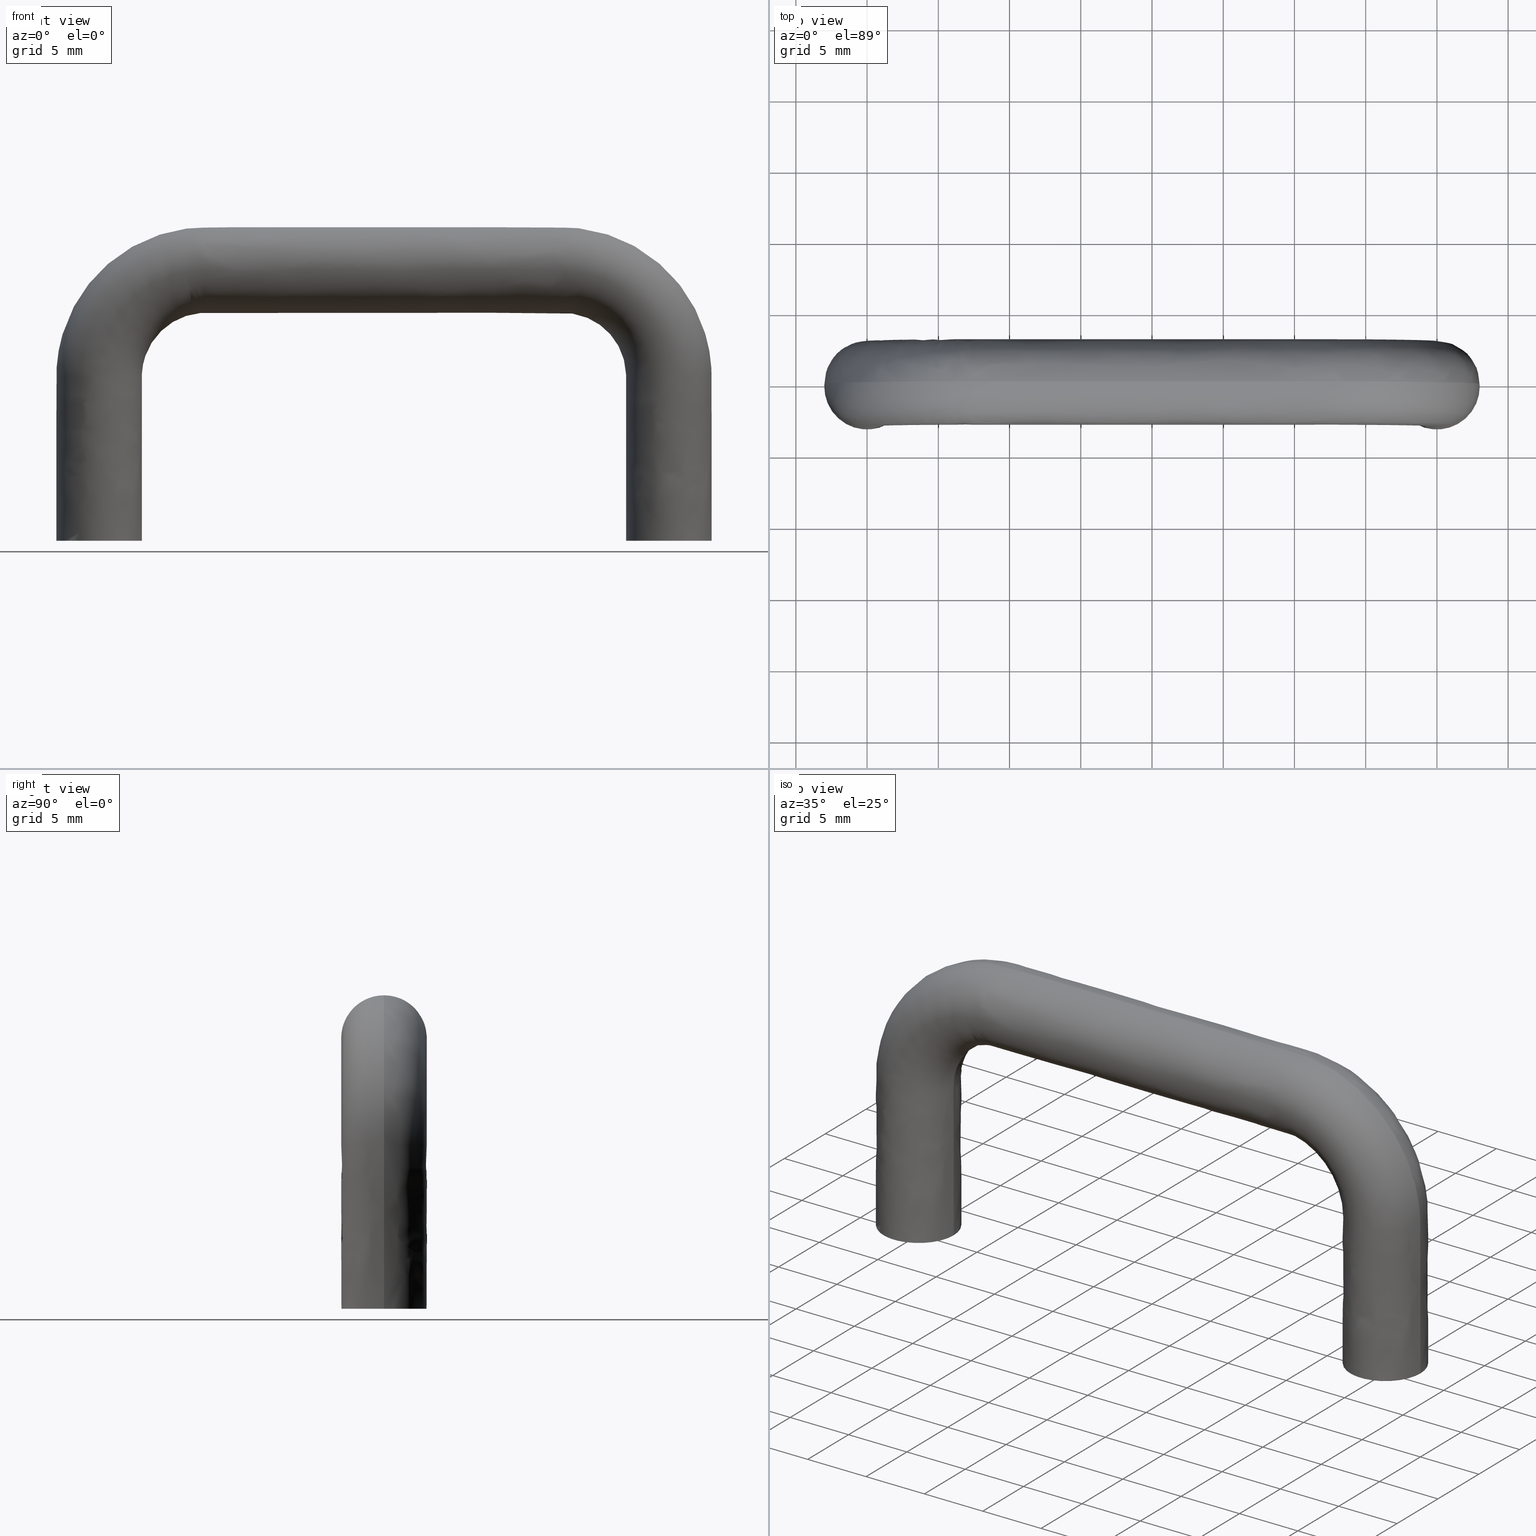
[diagram: canonical four-view strip — front | top / right | iso, engineering-drawing reading convention]
A machine part, canonical four-view strip (front | top / right | iso — engineering-drawing reading convention). The complete STEP part file that produces these views, byte-faithful:
ISO-10303-21;
HEADER;
/****************************************************************
 * Generated by software with PDE/Lib inside                    *
 * PDElib Version 4.4.1-0003, patched  Thursday August 19 11:58 *
 * International Technegroup Inc. (www.iti-oh.com)              *
 ****************************************************************/
FILE_DESCRIPTION((''),'2;1');
FILE_NAME('','2005-10-07T11:53:35',(''),(''),'','CADfix','');
FILE_SCHEMA(('AUTOMOTIVE_DESIGN'));
ENDSEC;
DATA;
#5=APPLICATION_CONTEXT('automotive design');
#6=APPLICATION_PROTOCOL_DEFINITION('Draft International Standard','automotive_design',1998,#5);
#7=PRODUCT_CONTEXT('None',#5,'mechanical');
#8=PRODUCT('pull','','None',(#7));
#9=PRODUCT_RELATED_PRODUCT_CATEGORY('part','description',(#8));
#10=PRODUCT_DEFINITION_FORMATION('None','None',#8);
#11=PRODUCT_DEFINITION_CONTEXT('part definition',#5,'design');
#12=PRODUCT_DEFINITION('None','None',#10,#11);
#18=(NAMED_UNIT(*)PLANE_ANGLE_UNIT()SI_UNIT($,.RADIAN.));
#19=DIMENSIONAL_EXPONENTS(0.0,0.0,0.0,0.0,0.0,0.0,0.0);
#20=PLANE_ANGLE_MEASURE_WITH_UNIT(PLANE_ANGLE_MEASURE(0.017453292500000),#18);
#24=(CONVERSION_BASED_UNIT('DEGREE',#20)NAMED_UNIT(#19)PLANE_ANGLE_UNIT());
#28=(NAMED_UNIT(*)SI_UNIT($,.STERADIAN.)SOLID_ANGLE_UNIT());
#32=(LENGTH_UNIT()NAMED_UNIT(*)SI_UNIT(.MILLI.,.METRE.));
#34=UNCERTAINTY_MEASURE_WITH_UNIT(LENGTH_MEASURE(0.001000000000000),#32,'DISTANCE_ACCURACY_VALUE','');
#36=(GEOMETRIC_REPRESENTATION_CONTEXT(3)GLOBAL_UNCERTAINTY_ASSIGNED_CONTEXT((#34))GLOBAL_UNIT_ASSIGNED_CONTEXT((#24,#28,#32))REPRESENTATION_CONTEXT('None','None'));
#37=AXIS2_PLACEMENT_3D('',#38,#39,#40);
#38=CARTESIAN_POINT('',(0.0,0.0,0.0));
#39=DIRECTION('',(0.0,0.0,1.0));
#40=DIRECTION('',(1.0,0.0,0.0));
#41=ADVANCED_BREP_SHAPE_REPRESENTATION('',(#37,#861),#36);
#42=PRODUCT_DEFINITION_SHAPE('','',#12);
#43=SHAPE_DEFINITION_REPRESENTATION(#42,#41);
#44=CARTESIAN_POINT('',(0.236068469313517,-1.986019052727332,8.200000000000001));
#45=CARTESIAN_POINT('',(0.179229457275955,-1.992775230897211,8.199999999999999));
#46=CARTESIAN_POINT('',(0.122097079069714,-1.996269596843733,8.199999999999999));
#47=CARTESIAN_POINT('',(-1.874172517774020,-2.118366675913447,8.199999999999999));
#48=CARTESIAN_POINT('',(-1.996269596843733,-0.122097079069714,8.199999999999999));
#49=CARTESIAN_POINT('',(-2.118366675913447,1.874172517774020,8.199999999999999));
#50=CARTESIAN_POINT('',(-0.122097079069714,1.996269596843733,8.199999999999999));
#51=CARTESIAN_POINT('',(0.236068469313517,-1.986019052727332,-0.205000000000000));
#52=CARTESIAN_POINT('',(0.179229457275955,-1.992775230897211,-0.205000000000000));
#53=CARTESIAN_POINT('',(0.122097079069714,-1.996269596843733,-0.205000000000000));
#54=CARTESIAN_POINT('',(-1.874172517774020,-2.118366675913447,-0.205000000000000));
#55=CARTESIAN_POINT('',(-1.996269596843733,-0.122097079069714,-0.205000000000000));
#56=CARTESIAN_POINT('',(-2.118366675913447,1.874172517774020,-0.205000000000000));
#57=CARTESIAN_POINT('',(-0.122097079069714,1.996269596843733,-0.205000000000000));
#65=(BOUNDED_SURFACE()B_SPLINE_SURFACE(2,1,((#44,#51),(#45,#52),(#46,#53),(#47,#54),(#48,#55),(#49,#56),(#50,#57)),.UNSPECIFIED.,.F.,.F.,.U.)B_SPLINE_SURFACE_WITH_KNOTS((3,2,2,3),(2,2),(0.0,0.132548339959391,3.446256838944149,6.759965337928908),(0.0,8.404999999999999),.UNSPECIFIED.)GEOMETRIC_REPRESENTATION_ITEM()RATIONAL_B_SPLINE_SURFACE(((0.977505800795127,0.977505800795127),(0.988284271247462,0.988284271247462),(1.0,1.0),(0.707106781186548,0.707106781186548),(1.0,1.0),(0.707106781186548,0.707106781186548),(1.0,1.0)))REPRESENTATION_ITEM('')SURFACE());
#66=CARTESIAN_POINT('',(0.236068469343232,-1.986019052723801,8.0));
#67=VERTEX_POINT('',#66);
#68=CARTESIAN_POINT('',(-2.0,0.0,8.0));
#69=VERTEX_POINT('',#68);
#70=CARTESIAN_POINT('',(0.236068469343232,-1.986019052723800,8.0));
#71=CARTESIAN_POINT('',(0.118448239333849,-2.0,8.0));
#72=CARTESIAN_POINT('',(0.0,-2.0,8.0));
#73=CARTESIAN_POINT('',(-2.000000000000000,-2.000000000000000,8.0));
#74=CARTESIAN_POINT('',(-2.0,0.0,8.0));
#82=(BOUNDED_CURVE()B_SPLINE_CURVE(2,(#70,#71,#72,#73,#74),.UNSPECIFIED.,.F.,.U.)B_SPLINE_CURVE_WITH_KNOTS((3,2,3),(0.229562473510587,0.250000000000000,0.500000000000000),.UNSPECIFIED.)CURVE()GEOMETRIC_REPRESENTATION_ITEM()RATIONAL_B_SPLINE_CURVE((0.956026754177973,0.976055948327722,1.0,0.707106781186548,1.0))REPRESENTATION_ITEM(''));
#83=EDGE_CURVE('',#67,#69,#82,.T.);
#84=ORIENTED_EDGE('',*,*,#83,.F.);
#85=CARTESIAN_POINT('',(0.236068469343232,-1.986019052723801,4.259142E-017));
#86=VERTEX_POINT('',#85);
#87=CARTESIAN_POINT('',(0.236068469343232,-1.986019052723801,8.0));
#88=CARTESIAN_POINT('',(0.236068469343232,-1.986019052723801,4.259142E-017));
#89=QUASI_UNIFORM_CURVE('',1,(#87,#88),.UNSPECIFIED.,.F.,.U.);
#90=EDGE_CURVE('',#67,#86,#89,.T.);
#91=ORIENTED_EDGE('',*,*,#90,.T.);
#92=CARTESIAN_POINT('',(-2.0,0.0,0.0));
#93=VERTEX_POINT('',#92);
#94=CARTESIAN_POINT('',(0.236068469343232,-1.986019052723800,4.259142E-017));
#95=CARTESIAN_POINT('',(0.118448239333849,-2.0,0.0));
#96=CARTESIAN_POINT('',(0.0,-2.0,0.0));
#97=CARTESIAN_POINT('',(-2.000000000000000,-2.000000000000000,0.0));
#98=CARTESIAN_POINT('',(-2.0,0.0,0.0));
#106=(BOUNDED_CURVE()B_SPLINE_CURVE(2,(#94,#95,#96,#97,#98),.UNSPECIFIED.,.F.,.U.)B_SPLINE_CURVE_WITH_KNOTS((3,2,3),(0.229562473510587,0.250000000000000,0.500000000000000),.UNSPECIFIED.)CURVE()GEOMETRIC_REPRESENTATION_ITEM()RATIONAL_B_SPLINE_CURVE((0.956026754177973,0.976055948327722,1.0,0.707106781186548,1.0))REPRESENTATION_ITEM(''));
#107=EDGE_CURVE('',#86,#93,#106,.T.);
#108=ORIENTED_EDGE('',*,*,#107,.T.);
#109=CARTESIAN_POINT('',(-0.122097079180703,1.996269596836946,4.163336E-017));
#110=VERTEX_POINT('',#109);
#111=CARTESIAN_POINT('',(-2.0,0.0,0.0));
#112=CARTESIAN_POINT('',(-2.000000000000000,1.881412133601800,0.0));
#113=CARTESIAN_POINT('',(-0.122097079180703,1.996269596836946,4.163336E-017));
#121=(BOUNDED_CURVE()B_SPLINE_CURVE(2,(#111,#112,#113),.UNSPECIFIED.,.F.,.U.)B_SPLINE_CURVE_WITH_KNOTS((3,3),(0.500000000000000,0.739332962222782),.UNSPECIFIED.)CURVE()GEOMETRIC_REPRESENTATION_ITEM()RATIONAL_B_SPLINE_CURVE((1.0,0.719603993305643,0.976072041632083))REPRESENTATION_ITEM(''));
#122=EDGE_CURVE('',#93,#110,#121,.T.);
#123=ORIENTED_EDGE('',*,*,#122,.T.);
#124=CARTESIAN_POINT('',(-0.122097079180703,1.996269596836946,8.0));
#125=VERTEX_POINT('',#124);
#126=CARTESIAN_POINT('',(-0.122097079180703,1.996269596836946,8.0));
#127=CARTESIAN_POINT('',(-0.122097079180703,1.996269596836946,4.163336E-017));
#128=QUASI_UNIFORM_CURVE('',1,(#126,#127),.UNSPECIFIED.,.F.,.U.);
#129=EDGE_CURVE('',#125,#110,#128,.T.);
#130=ORIENTED_EDGE('',*,*,#129,.F.);
#131=CARTESIAN_POINT('',(-2.0,0.0,8.0));
#132=CARTESIAN_POINT('',(-2.000000000000000,1.881412133601800,8.0));
#133=CARTESIAN_POINT('',(-0.122097079180703,1.996269596836946,8.0));
#141=(BOUNDED_CURVE()B_SPLINE_CURVE(2,(#131,#132,#133),.UNSPECIFIED.,.F.,.U.)B_SPLINE_CURVE_WITH_KNOTS((3,3),(0.500000000000000,0.739332962222782),.UNSPECIFIED.)CURVE()GEOMETRIC_REPRESENTATION_ITEM()RATIONAL_B_SPLINE_CURVE((1.0,0.719603993305643,0.976072041632083))REPRESENTATION_ITEM(''));
#142=EDGE_CURVE('',#69,#125,#141,.T.);
#143=ORIENTED_EDGE('',*,*,#142,.F.);
#144=EDGE_LOOP('',(#84,#91,#108,#123,#130,#143));
#145=FACE_OUTER_BOUND('',#144,.T.);
#146=ADVANCED_FACE('',(#145),#65,.F.);
#147=CARTESIAN_POINT('',(-0.122097079069714,1.996269596843733,8.199999999999999));
#148=CARTESIAN_POINT('',(1.874172517774020,2.118366675913447,8.199999999999999));
#149=CARTESIAN_POINT('',(1.996269596843733,0.122097079069714,8.199999999999999));
#150=CARTESIAN_POINT('',(2.111572393465055,-1.763086981679002,8.199999999999999));
#151=CARTESIAN_POINT('',(0.236068469313517,-1.986019052727332,8.200000000000001));
#152=CARTESIAN_POINT('',(-0.122097079069714,1.996269596843733,-0.205000000000000));
#153=CARTESIAN_POINT('',(1.874172517774020,2.118366675913447,-0.205000000000000));
#154=CARTESIAN_POINT('',(1.996269596843733,0.122097079069714,-0.205000000000000));
#155=CARTESIAN_POINT('',(2.111572393465055,-1.763086981679002,-0.205000000000000));
#156=CARTESIAN_POINT('',(0.236068469313517,-1.986019052727332,-0.205000000000000));
#164=(BOUNDED_SURFACE()B_SPLINE_SURFACE(2,1,((#147,#152),(#148,#153),(#149,#154),(#150,#155),(#151,#156)),.UNSPECIFIED.,.F.,.F.,.U.)B_SPLINE_SURFACE_WITH_KNOTS((3,2,3),(2,2),(0.0,3.313708498984759,6.494868658010128),(0.0,8.404999999999999),.UNSPECIFIED.)GEOMETRIC_REPRESENTATION_ITEM()RATIONAL_B_SPLINE_SURFACE(((1.0,1.0),(0.707106781186548,0.707106781186548),(1.0,1.0),(0.718822509939086,0.718822509939086),(0.977505800795127,0.977505800795127)))REPRESENTATION_ITEM('')SURFACE());
#165=CARTESIAN_POINT('',(2.0,0.0,8.0));
#166=VERTEX_POINT('',#165);
#167=CARTESIAN_POINT('',(2.0,0.0,8.0));
#168=CARTESIAN_POINT('',(2.0,-1.776349051849207,8.0));
#169=CARTESIAN_POINT('',(0.236068469343232,-1.986019052723801,8.0));
#177=(BOUNDED_CURVE()B_SPLINE_CURVE(2,(#167,#168,#169),.UNSPECIFIED.,.F.,.U.)B_SPLINE_CURVE_WITH_KNOTS((3,3),(0.0,0.229562473510587),.UNSPECIFIED.)CURVE()GEOMETRIC_REPRESENTATION_ITEM()RATIONAL_B_SPLINE_CURVE((1.0,0.731050832858825,0.956026754177973))REPRESENTATION_ITEM(''));
#178=EDGE_CURVE('',#166,#67,#177,.T.);
#179=ORIENTED_EDGE('',*,*,#178,.F.);
#180=CARTESIAN_POINT('',(-0.122097079180703,1.996269596836945,8.0));
#181=CARTESIAN_POINT('',(-0.061105526708478,2.000000000000000,8.0));
#182=CARTESIAN_POINT('',(0.0,2.0,8.0));
#183=CARTESIAN_POINT('',(2.000000000000000,2.000000000000000,8.0));
#184=CARTESIAN_POINT('',(2.0,0.0,8.0));
#192=(BOUNDED_CURVE()B_SPLINE_CURVE(2,(#180,#181,#182,#183,#184),.UNSPECIFIED.,.F.,.U.)B_SPLINE_CURVE_WITH_KNOTS((3,2,3),(0.739332962222782,0.750000000000000,1.0),.UNSPECIFIED.)CURVE()GEOMETRIC_REPRESENTATION_ITEM()RATIONAL_B_SPLINE_CURVE((0.976072041632081,0.987502787880903,1.0,0.707106781186548,1.0))REPRESENTATION_ITEM(''));
#193=EDGE_CURVE('',#125,#166,#192,.T.);
#194=ORIENTED_EDGE('',*,*,#193,.F.);
#195=ORIENTED_EDGE('',*,*,#129,.T.);
#196=CARTESIAN_POINT('',(2.0,0.0,0.0));
#197=VERTEX_POINT('',#196);
#198=CARTESIAN_POINT('',(-0.122097079180703,1.996269596836945,4.163336E-017));
#199=CARTESIAN_POINT('',(-0.061105526708478,2.000000000000000,0.0));
#200=CARTESIAN_POINT('',(0.0,2.0,0.0));
#201=CARTESIAN_POINT('',(2.000000000000000,2.000000000000000,0.0));
#202=CARTESIAN_POINT('',(2.0,0.0,0.0));
#210=(BOUNDED_CURVE()B_SPLINE_CURVE(2,(#198,#199,#200,#201,#202),.UNSPECIFIED.,.F.,.U.)B_SPLINE_CURVE_WITH_KNOTS((3,2,3),(0.739332962222782,0.750000000000000,1.0),.UNSPECIFIED.)CURVE()GEOMETRIC_REPRESENTATION_ITEM()RATIONAL_B_SPLINE_CURVE((0.976072041632081,0.987502787880903,1.0,0.707106781186548,1.0))REPRESENTATION_ITEM(''));
#211=EDGE_CURVE('',#110,#197,#210,.T.);
#212=ORIENTED_EDGE('',*,*,#211,.T.);
#213=CARTESIAN_POINT('',(2.0,0.0,0.0));
#214=CARTESIAN_POINT('',(2.0,-1.776349051849207,0.0));
#215=CARTESIAN_POINT('',(0.236068469343232,-1.986019052723801,4.259142E-017));
#223=(BOUNDED_CURVE()B_SPLINE_CURVE(2,(#213,#214,#215),.UNSPECIFIED.,.F.,.U.)B_SPLINE_CURVE_WITH_KNOTS((3,3),(0.0,0.229562473510587),.UNSPECIFIED.)CURVE()GEOMETRIC_REPRESENTATION_ITEM()RATIONAL_B_SPLINE_CURVE((1.0,0.731050832858825,0.956026754177973))REPRESENTATION_ITEM(''));
#224=EDGE_CURVE('',#197,#86,#223,.T.);
#225=ORIENTED_EDGE('',*,*,#224,.T.);
#226=ORIENTED_EDGE('',*,*,#90,.F.);
#227=EDGE_LOOP('',(#179,#194,#195,#212,#225,#226));
#228=FACE_OUTER_BOUND('',#227,.T.);
#229=ADVANCED_FACE('',(#228),#164,.F.);
#230=CARTESIAN_POINT('',(40.236068469313508,-1.986019052727332,8.200000000000001));
#231=CARTESIAN_POINT('',(40.179229457275945,-1.992775230897211,8.199999999999999));
#232=CARTESIAN_POINT('',(40.122097079069711,-1.996269596843733,8.199999999999999));
#233=CARTESIAN_POINT('',(38.125827482225986,-2.118366675913447,8.199999999999999));
#234=CARTESIAN_POINT('',(38.003730403156268,-0.122097079069714,8.199999999999999));
#235=CARTESIAN_POINT('',(37.881633324086557,1.874172517774020,8.199999999999999));
#236=CARTESIAN_POINT('',(39.877902920930289,1.996269596843733,8.199999999999999));
#237=CARTESIAN_POINT('',(40.236068469313508,-1.986019052727332,-0.205000000000000));
#238=CARTESIAN_POINT('',(40.179229457275945,-1.992775230897211,-0.205000000000000));
#239=CARTESIAN_POINT('',(40.122097079069711,-1.996269596843733,-0.205000000000000));
#240=CARTESIAN_POINT('',(38.125827482225986,-2.118366675913447,-0.205000000000000));
#241=CARTESIAN_POINT('',(38.003730403156268,-0.122097079069714,-0.205000000000000));
#242=CARTESIAN_POINT('',(37.881633324086557,1.874172517774020,-0.205000000000000));
#243=CARTESIAN_POINT('',(39.877902920930289,1.996269596843733,-0.205000000000000));
#251=(BOUNDED_SURFACE()B_SPLINE_SURFACE(2,1,((#230,#237),(#231,#238),(#232,#239),(#233,#240),(#234,#241),(#235,#242),(#236,#243)),.UNSPECIFIED.,.F.,.F.,.U.)B_SPLINE_SURFACE_WITH_KNOTS((3,2,2,3),(2,2),(0.0,0.132548339959390,3.446256838944145,6.759965337928900),(0.0,8.404999999999999),.UNSPECIFIED.)GEOMETRIC_REPRESENTATION_ITEM()RATIONAL_B_SPLINE_SURFACE(((0.977505800795127,0.977505800795127),(0.988284271247462,0.988284271247462),(1.0,1.0),(0.707106781186548,0.707106781186548),(1.0,1.0),(0.707106781186548,0.707106781186548),(1.0,1.0)))REPRESENTATION_ITEM('')SURFACE());
#252=CARTESIAN_POINT('',(40.236068469343230,-1.986019052723801,8.0));
#253=VERTEX_POINT('',#252);
#254=CARTESIAN_POINT('',(38.0,0.0,8.0));
#255=VERTEX_POINT('',#254);
#256=CARTESIAN_POINT('',(40.236068469343230,-1.986019052723801,8.0));
#257=CARTESIAN_POINT('',(40.118448239333844,-2.000000000000000,8.000000000000002));
#258=CARTESIAN_POINT('',(40.0,-2.0,8.0));
#259=CARTESIAN_POINT('',(38.0,-2.000000000000000,8.0));
#260=CARTESIAN_POINT('',(38.0,0.0,8.0));
#268=(BOUNDED_CURVE()B_SPLINE_CURVE(2,(#256,#257,#258,#259,#260),.UNSPECIFIED.,.F.,.U.)B_SPLINE_CURVE_WITH_KNOTS((3,2,3),(0.229562473510587,0.250000000000000,0.500000000000000),.UNSPECIFIED.)CURVE()GEOMETRIC_REPRESENTATION_ITEM()RATIONAL_B_SPLINE_CURVE((0.956026754177974,0.976055948327723,1.0,0.707106781186548,1.0))REPRESENTATION_ITEM(''));
#269=EDGE_CURVE('',#253,#255,#268,.T.);
#270=ORIENTED_EDGE('',*,*,#269,.F.);
#271=CARTESIAN_POINT('',(40.236068469343238,-1.986019052723800,4.259142E-017));
#272=VERTEX_POINT('',#271);
#273=CARTESIAN_POINT('',(40.236068469343230,-1.986019052723801,8.0));
#274=CARTESIAN_POINT('',(40.236068469343238,-1.986019052723800,4.259142E-017));
#275=QUASI_UNIFORM_CURVE('',1,(#273,#274),.UNSPECIFIED.,.F.,.U.);
#276=EDGE_CURVE('',#253,#272,#275,.T.);
#277=ORIENTED_EDGE('',*,*,#276,.T.);
#278=CARTESIAN_POINT('',(38.0,0.0,0.0));
#279=VERTEX_POINT('',#278);
#280=CARTESIAN_POINT('',(40.236068469343238,-1.986019052723800,4.259142E-017));
#281=CARTESIAN_POINT('',(40.118448239333851,-2.000000000000000,0.0));
#282=CARTESIAN_POINT('',(40.0,-2.0,0.0));
#283=CARTESIAN_POINT('',(38.0,-2.000000000000000,0.0));
#284=CARTESIAN_POINT('',(38.0,0.0,0.0));
#292=(BOUNDED_CURVE()B_SPLINE_CURVE(2,(#280,#281,#282,#283,#284),.UNSPECIFIED.,.F.,.U.)B_SPLINE_CURVE_WITH_KNOTS((3,2,3),(0.229562473510587,0.250000000000000,0.500000000000000),.UNSPECIFIED.)CURVE()GEOMETRIC_REPRESENTATION_ITEM()RATIONAL_B_SPLINE_CURVE((0.956026754177973,0.976055948327722,1.0,0.707106781186548,1.0))REPRESENTATION_ITEM(''));
#293=EDGE_CURVE('',#272,#279,#292,.T.);
#294=ORIENTED_EDGE('',*,*,#293,.T.);
#295=CARTESIAN_POINT('',(39.877902920819302,1.996269596836946,4.163336E-017));
#296=VERTEX_POINT('',#295);
#297=CARTESIAN_POINT('',(38.0,0.0,0.0));
#298=CARTESIAN_POINT('',(38.0,1.881412133601800,0.0));
#299=CARTESIAN_POINT('',(39.877902920819302,1.996269596836946,4.163336E-017));
#307=(BOUNDED_CURVE()B_SPLINE_CURVE(2,(#297,#298,#299),.UNSPECIFIED.,.F.,.U.)B_SPLINE_CURVE_WITH_KNOTS((3,3),(0.500000000000000,0.739332962222782),.UNSPECIFIED.)CURVE()GEOMETRIC_REPRESENTATION_ITEM()RATIONAL_B_SPLINE_CURVE((1.0,0.719603993305643,0.976072041632083))REPRESENTATION_ITEM(''));
#308=EDGE_CURVE('',#279,#296,#307,.T.);
#309=ORIENTED_EDGE('',*,*,#308,.T.);
#310=CARTESIAN_POINT('',(39.877902920819302,1.996269596836946,8.0));
#311=VERTEX_POINT('',#310);
#312=CARTESIAN_POINT('',(39.877902920819302,1.996269596836946,8.0));
#313=CARTESIAN_POINT('',(39.877902920819302,1.996269596836946,4.163336E-017));
#314=QUASI_UNIFORM_CURVE('',1,(#312,#313),.UNSPECIFIED.,.F.,.U.);
#315=EDGE_CURVE('',#311,#296,#314,.T.);
#316=ORIENTED_EDGE('',*,*,#315,.F.);
#317=CARTESIAN_POINT('',(38.0,0.0,8.0));
#318=CARTESIAN_POINT('',(38.0,1.881412133601800,8.0));
#319=CARTESIAN_POINT('',(39.877902920819295,1.996269596836946,8.0));
#327=(BOUNDED_CURVE()B_SPLINE_CURVE(2,(#317,#318,#319),.UNSPECIFIED.,.F.,.U.)B_SPLINE_CURVE_WITH_KNOTS((3,3),(0.500000000000000,0.739332962222782),.UNSPECIFIED.)CURVE()GEOMETRIC_REPRESENTATION_ITEM()RATIONAL_B_SPLINE_CURVE((1.0,0.719603993305643,0.976072041632083))REPRESENTATION_ITEM(''));
#328=EDGE_CURVE('',#255,#311,#327,.T.);
#329=ORIENTED_EDGE('',*,*,#328,.F.);
#330=EDGE_LOOP('',(#270,#277,#294,#309,#316,#329));
#331=FACE_OUTER_BOUND('',#330,.T.);
#332=ADVANCED_FACE('',(#331),#251,.F.);
#333=CARTESIAN_POINT('',(39.877902920930289,1.996269596843733,8.199999999999999));
#334=CARTESIAN_POINT('',(41.874172517774021,2.118366675913447,8.199999999999999));
#335=CARTESIAN_POINT('',(41.996269596843732,0.122097079069714,8.199999999999999));
#336=CARTESIAN_POINT('',(42.111572393465053,-1.763086981679002,8.199999999999999));
#337=CARTESIAN_POINT('',(40.236068469313508,-1.986019052727332,8.200000000000001));
#338=CARTESIAN_POINT('',(39.877902920930289,1.996269596843733,-0.205000000000000));
#339=CARTESIAN_POINT('',(41.874172517774021,2.118366675913447,-0.205000000000000));
#340=CARTESIAN_POINT('',(41.996269596843732,0.122097079069714,-0.205000000000000));
#341=CARTESIAN_POINT('',(42.111572393465053,-1.763086981679002,-0.205000000000000));
#342=CARTESIAN_POINT('',(40.236068469313508,-1.986019052727332,-0.205000000000000));
#350=(BOUNDED_SURFACE()B_SPLINE_SURFACE(2,1,((#333,#338),(#334,#339),(#335,#340),(#336,#341),(#337,#342)),.UNSPECIFIED.,.F.,.F.,.U.)B_SPLINE_SURFACE_WITH_KNOTS((3,2,3),(2,2),(0.0,3.313708498984749,6.494868658010108),(0.0,8.404999999999999),.UNSPECIFIED.)GEOMETRIC_REPRESENTATION_ITEM()RATIONAL_B_SPLINE_SURFACE(((1.0,1.0),(0.707106781186548,0.707106781186548),(1.0,1.0),(0.718822509939086,0.718822509939086),(0.977505800795127,0.977505800795127)))REPRESENTATION_ITEM('')SURFACE());
#351=CARTESIAN_POINT('',(42.0,0.0,8.0));
#352=VERTEX_POINT('',#351);
#353=CARTESIAN_POINT('',(42.0,0.0,8.0));
#354=CARTESIAN_POINT('',(42.0,-1.776349051849208,8.0));
#355=CARTESIAN_POINT('',(40.236068469343230,-1.986019052723801,8.0));
#363=(BOUNDED_CURVE()B_SPLINE_CURVE(2,(#353,#354,#355),.UNSPECIFIED.,.F.,.U.)B_SPLINE_CURVE_WITH_KNOTS((3,3),(0.0,0.229562473510587),.UNSPECIFIED.)CURVE()GEOMETRIC_REPRESENTATION_ITEM()RATIONAL_B_SPLINE_CURVE((1.0,0.731050832858825,0.956026754177974))REPRESENTATION_ITEM(''));
#364=EDGE_CURVE('',#352,#253,#363,.T.);
#365=ORIENTED_EDGE('',*,*,#364,.F.);
#366=CARTESIAN_POINT('',(39.877902920819295,1.996269596836946,8.0));
#367=CARTESIAN_POINT('',(39.938894473291533,2.000000000000000,8.0));
#368=CARTESIAN_POINT('',(40.0,2.0,8.0));
#369=CARTESIAN_POINT('',(42.000000000000007,2.000000000000000,8.0));
#370=CARTESIAN_POINT('',(42.0,0.0,8.0));
#378=(BOUNDED_CURVE()B_SPLINE_CURVE(2,(#366,#367,#368,#369,#370),.UNSPECIFIED.,.F.,.U.)B_SPLINE_CURVE_WITH_KNOTS((3,2,3),(0.739332962222782,0.750000000000000,1.0),.UNSPECIFIED.)CURVE()GEOMETRIC_REPRESENTATION_ITEM()RATIONAL_B_SPLINE_CURVE((0.976072041632082,0.987502787880904,1.0,0.707106781186548,1.0))REPRESENTATION_ITEM(''));
#379=EDGE_CURVE('',#311,#352,#378,.T.);
#380=ORIENTED_EDGE('',*,*,#379,.F.);
#381=ORIENTED_EDGE('',*,*,#315,.T.);
#382=CARTESIAN_POINT('',(42.0,0.0,0.0));
#383=VERTEX_POINT('',#382);
#384=CARTESIAN_POINT('',(39.877902920819302,1.996269596836945,4.163336E-017));
#385=CARTESIAN_POINT('',(39.938894473291526,2.000000000000000,0.0));
#386=CARTESIAN_POINT('',(40.0,2.0,0.0));
#387=CARTESIAN_POINT('',(42.000000000000007,2.000000000000000,0.0));
#388=CARTESIAN_POINT('',(42.0,0.0,0.0));
#396=(BOUNDED_CURVE()B_SPLINE_CURVE(2,(#384,#385,#386,#387,#388),.UNSPECIFIED.,.F.,.U.)B_SPLINE_CURVE_WITH_KNOTS((3,2,3),(0.739332962222782,0.750000000000000,1.0),.UNSPECIFIED.)CURVE()GEOMETRIC_REPRESENTATION_ITEM()RATIONAL_B_SPLINE_CURVE((0.976072041632082,0.987502787880904,1.0,0.707106781186548,1.0))REPRESENTATION_ITEM(''));
#397=EDGE_CURVE('',#296,#383,#396,.T.);
#398=ORIENTED_EDGE('',*,*,#397,.T.);
#399=CARTESIAN_POINT('',(42.0,0.0,0.0));
#400=CARTESIAN_POINT('',(42.0,-1.776349051849203,0.0));
#401=CARTESIAN_POINT('',(40.236068469343238,-1.986019052723800,4.259142E-017));
#409=(BOUNDED_CURVE()B_SPLINE_CURVE(2,(#399,#400,#401),.UNSPECIFIED.,.F.,.U.)B_SPLINE_CURVE_WITH_KNOTS((3,3),(0.0,0.229562473510587),.UNSPECIFIED.)CURVE()GEOMETRIC_REPRESENTATION_ITEM()RATIONAL_B_SPLINE_CURVE((1.0,0.731050832858825,0.956026754177973))REPRESENTATION_ITEM(''));
#410=EDGE_CURVE('',#383,#272,#409,.T.);
#411=ORIENTED_EDGE('',*,*,#410,.T.);
#412=ORIENTED_EDGE('',*,*,#276,.F.);
#413=EDGE_LOOP('',(#365,#380,#381,#398,#411,#412));
#414=FACE_OUTER_BOUND('',#413,.T.);
#415=ADVANCED_FACE('',(#414),#350,.F.);
#416=CARTESIAN_POINT('',(-2.199799992247224,-2.199763729070943,8.0));
#417=CARTESIAN_POINT('',(2.199800099535584,-2.199763729070943,8.0));
#418=CARTESIAN_POINT('',(-2.199799992247224,2.199751319383901,8.0));
#419=CARTESIAN_POINT('',(2.199800099535584,2.199751319383901,8.0));
#420=B_SPLINE_SURFACE_WITH_KNOTS('',1,1,((#416,#418),(#417,#419)),.UNSPECIFIED.,.F.,.F.,.U.,(2,2),(2,2),(0.0,4.399600091782808),(0.0,4.399515048454843),.UNSPECIFIED.);
#421=ORIENTED_EDGE('',*,*,#178,.T.);
#422=ORIENTED_EDGE('',*,*,#83,.T.);
#423=ORIENTED_EDGE('',*,*,#142,.T.);
#424=ORIENTED_EDGE('',*,*,#193,.T.);
#425=EDGE_LOOP('',(#421,#422,#423,#424));
#426=FACE_OUTER_BOUND('',#425,.T.);
#427=ADVANCED_FACE('',(#426),#420,.F.);
#428=CARTESIAN_POINT('',(37.800200007752778,-2.199763729070943,8.0));
#429=CARTESIAN_POINT('',(42.199800099535587,-2.199763729070943,8.0));
#430=CARTESIAN_POINT('',(37.800200007752778,2.199751319383901,8.0));
#431=CARTESIAN_POINT('',(42.199800099535587,2.199751319383901,8.0));
#432=B_SPLINE_SURFACE_WITH_KNOTS('',1,1,((#428,#430),(#429,#431)),.UNSPECIFIED.,.F.,.F.,.U.,(2,2),(2,2),(0.0,4.399600091782808),(0.0,4.399515048454843),.UNSPECIFIED.);
#433=ORIENTED_EDGE('',*,*,#364,.T.);
#434=ORIENTED_EDGE('',*,*,#269,.T.);
#435=ORIENTED_EDGE('',*,*,#328,.T.);
#436=ORIENTED_EDGE('',*,*,#379,.T.);
#437=EDGE_LOOP('',(#433,#434,#435,#436));
#438=FACE_OUTER_BOUND('',#437,.T.);
#439=ADVANCED_FACE('',(#438),#432,.F.);
#440=CARTESIAN_POINT('',(-3.000000000000002,-0.043189099899031,-0.381861436358178));
#441=CARTESIAN_POINT('',(-2.999999999999999,-0.021151251618007,-0.381861436358177));
#442=CARTESIAN_POINT('',(-3.000000000000001,3.000000000000001,-0.381861436358177));
#443=CARTESIAN_POINT('',(1.836704E-016,3.0,-0.381861436358178));
#444=CARTESIAN_POINT('',(3.000000000000001,3.000000000000001,-0.381861436358177));
#445=CARTESIAN_POINT('',(3.000000000000000,-0.021151252378914,-0.381861436358178));
#446=CARTESIAN_POINT('',(2.999999999999999,-0.042179325162122,-0.381861436358177));
#447=CARTESIAN_POINT('',(-3.000000000000003,-0.043189099899031,3.584546247387517));
#448=CARTESIAN_POINT('',(-2.999999999999999,-0.021151251618007,3.584546247387514));
#449=CARTESIAN_POINT('',(-3.000000000000001,3.000000000000001,3.584546247387515));
#450=CARTESIAN_POINT('',(1.930558E-016,3.0,3.584546247387515));
#451=CARTESIAN_POINT('',(3.000000000000001,3.000000000000001,3.584546247387516));
#452=CARTESIAN_POINT('',(3.000000000000000,-0.021151252378914,3.584546247387516));
#453=CARTESIAN_POINT('',(2.999999999999999,-0.042179325162122,3.584546247387514));
#454=CARTESIAN_POINT('',(-3.000000000000003,-0.043189099899031,7.542273123693765));
#455=CARTESIAN_POINT('',(-2.999999999999999,-0.021151251618007,7.542273123693756));
#456=CARTESIAN_POINT('',(-3.000000000000003,3.000000000000001,7.542273123693760));
#457=CARTESIAN_POINT('',(-1.052025E-016,3.0,7.542273123693759));
#458=CARTESIAN_POINT('',(3.000000000000001,3.000000000000001,7.542273123693745));
#459=CARTESIAN_POINT('',(3.000000000000000,-0.021151252378914,7.542273123693750));
#460=CARTESIAN_POINT('',(2.999999999999999,-0.042179325162122,7.542273123693747));
#461=CARTESIAN_POINT('',(-3.000000000000003,-0.043189099899031,11.500000000000005));
#462=CARTESIAN_POINT('',(-2.999999999999999,-0.021151251618007,11.500000000000000));
#463=CARTESIAN_POINT('',(-2.999999999999987,3.000000000000001,11.499999999999995));
#464=CARTESIAN_POINT('',(9.086292E-015,3.0,11.500000000000000));
#465=CARTESIAN_POINT('',(3.000000000000008,3.000000000000001,11.499999999999982));
#466=CARTESIAN_POINT('',(3.000000000000000,-0.021151252378914,11.499999999999998));
#467=CARTESIAN_POINT('',(2.999999999999999,-0.042179325162122,11.499999999999996));
#468=CARTESIAN_POINT('',(-3.000000000000003,-0.043189099899031,14.283620580298569));
#469=CARTESIAN_POINT('',(-3.0,-0.021151251618007,14.283620580298557));
#470=CARTESIAN_POINT('',(-2.999999999999980,3.000000000000001,14.283620580298548));
#471=CARTESIAN_POINT('',(1.743353E-014,3.0,13.489123673796581));
#472=CARTESIAN_POINT('',(3.000000000000014,3.000000000000001,12.694626767294574));
#473=CARTESIAN_POINT('',(3.000000000000000,-0.021151252378914,12.694626767294581));
#474=CARTESIAN_POINT('',(2.999999999999999,-0.042179325162122,12.694626767294571));
#475=CARTESIAN_POINT('',(-1.892938191038292,-0.043189099899031,16.956304213879204));
#476=CARTESIAN_POINT('',(-1.892938191038290,-0.021151251618007,16.956304213879193));
#477=CARTESIAN_POINT('',(-1.892938191038287,3.000000000000001,16.956304213879182));
#478=CARTESIAN_POINT('',(0.790176302740649,3.0,15.396778020538850));
#479=CARTESIAN_POINT('',(3.473290796519585,3.000000000000001,13.837251827198479));
#480=CARTESIAN_POINT('',(3.473290796519586,-0.021151252378914,13.837251827198505));
#481=CARTESIAN_POINT('',(3.473290796519583,-0.042179325162122,13.837251827198486));
#482=CARTESIAN_POINT('',(2.043695786120817,-0.043189099899031,20.892938191038308));
#483=CARTESIAN_POINT('',(2.043695786120815,-0.021151251618007,20.892938191038294));
#484=CARTESIAN_POINT('',(2.043695786120813,3.000000000000001,20.892938191038269));
#485=CARTESIAN_POINT('',(3.603221979461160,3.0,18.209823697259349));
#486=CARTESIAN_POINT('',(5.162748172801506,3.000000000000001,15.526709203480419));
#487=CARTESIAN_POINT('',(5.162748172801511,-0.021151252378914,15.526709203480406));
#488=CARTESIAN_POINT('',(5.162748172801508,-0.042179325162122,15.526709203480388));
#489=CARTESIAN_POINT('',(4.716379419701431,-0.043189099899031,22.000000000000014));
#490=CARTESIAN_POINT('',(4.716379419701428,-0.021151251618007,21.999999999999993));
#491=CARTESIAN_POINT('',(4.716379419701426,3.000000000000001,21.999999999999993));
#492=CARTESIAN_POINT('',(5.510876326203430,3.0,19.0));
#493=CARTESIAN_POINT('',(6.305373232705416,3.000000000000001,15.999999999999959));
#494=CARTESIAN_POINT('',(6.305373232705422,-0.021151252378914,16.000000000000007));
#495=CARTESIAN_POINT('',(6.305373232705418,-0.042179325162122,15.999999999999989));
#496=CARTESIAN_POINT('',(7.500000000000005,-0.043189099899031,22.000000000000014));
#497=CARTESIAN_POINT('',(7.499999999999997,-0.021151251618007,21.999999999999993));
#498=CARTESIAN_POINT('',(7.499999999999999,3.000000000000001,21.999999999999993));
#499=CARTESIAN_POINT('',(7.500000000000000,3.0,19.0));
#500=CARTESIAN_POINT('',(7.499999999999999,3.000000000000001,15.999999999999959));
#501=CARTESIAN_POINT('',(7.500000000000002,-0.021151252378914,16.000000000000007));
#502=CARTESIAN_POINT('',(7.499999999999996,-0.042179325162122,15.999999999999989));
#503=CARTESIAN_POINT('',(15.833333333333362,-0.043189099899031,22.000000000000014));
#504=CARTESIAN_POINT('',(15.833333333333353,-0.021151251618007,21.999999999999993));
#505=CARTESIAN_POINT('',(15.833333333333318,3.000000000000001,21.999999999999993));
#506=CARTESIAN_POINT('',(15.833333333333350,3.0,19.0));
#507=CARTESIAN_POINT('',(15.833333333333318,3.000000000000001,15.999999999999959));
#508=CARTESIAN_POINT('',(15.833333333333355,-0.021151252378914,16.000000000000007));
#509=CARTESIAN_POINT('',(15.833333333333345,-0.042179325162122,15.999999999999989));
#510=CARTESIAN_POINT('',(24.166666666666668,-0.043189099899031,22.000000000000014));
#511=CARTESIAN_POINT('',(24.166666666666643,-0.021151251618007,21.999999999999993));
#512=CARTESIAN_POINT('',(24.166666666666650,3.000000000000001,21.999999999999993));
#513=CARTESIAN_POINT('',(24.166666666666650,3.0,19.0));
#514=CARTESIAN_POINT('',(24.166666666666650,3.000000000000001,15.999999999999959));
#515=CARTESIAN_POINT('',(24.166666666666664,-0.021151252378914,16.000000000000007));
#516=CARTESIAN_POINT('',(24.166666666666639,-0.042179325162122,15.999999999999989));
#517=CARTESIAN_POINT('',(32.500000000000028,-0.043189099899031,22.000000000000014));
#518=CARTESIAN_POINT('',(32.500000000000000,-0.021151251618007,21.999999999999993));
#519=CARTESIAN_POINT('',(32.499999999999986,3.000000000000001,21.999999999999993));
#520=CARTESIAN_POINT('',(32.500000000000000,3.0,19.0));
#521=CARTESIAN_POINT('',(32.499999999999986,3.000000000000001,15.999999999999959));
#522=CARTESIAN_POINT('',(32.500000000000007,-0.021151252378914,16.000000000000007));
#523=CARTESIAN_POINT('',(32.499999999999986,-0.042179325162122,15.999999999999989));
#524=CARTESIAN_POINT('',(38.263455967290561,-0.043189099899031,22.000000000000014));
#525=CARTESIAN_POINT('',(38.263455967290533,-0.021151251618007,21.999999999999993));
#526=CARTESIAN_POINT('',(38.263455967290575,3.000000000000001,21.999999999999993));
#527=CARTESIAN_POINT('',(36.642135623730951,3.0,19.0));
#528=CARTESIAN_POINT('',(35.020815280171291,3.000000000000001,15.999999999999959));
#529=CARTESIAN_POINT('',(35.020815280171306,-0.021151252378914,16.000000000000007));
#530=CARTESIAN_POINT('',(35.020815280171277,-0.042179325162122,15.999999999999989));
#531=CARTESIAN_POINT('',(43.000000000000036,-0.043189099899031,17.263455967290607));
#532=CARTESIAN_POINT('',(42.999999999999979,-0.021151251618007,17.263455967290600));
#533=CARTESIAN_POINT('',(42.999999999999908,3.000000000000001,17.263455967290572));
#534=CARTESIAN_POINT('',(40.0,3.0,15.642135623730949));
#535=CARTESIAN_POINT('',(36.999999999999964,3.000000000000001,14.020815280171290));
#536=CARTESIAN_POINT('',(37.000000000000007,-0.021151252378914,14.020815280171306));
#537=CARTESIAN_POINT('',(36.999999999999979,-0.042179325162122,14.020815280171297));
#538=CARTESIAN_POINT('',(43.000000000000028,-0.043189099899031,11.500000000000005));
#539=CARTESIAN_POINT('',(42.999999999999979,-0.021151251618007,11.500000000000000));
#540=CARTESIAN_POINT('',(42.999999999999979,3.000000000000001,11.499999999999995));
#541=CARTESIAN_POINT('',(40.0,3.0,11.500000000000000));
#542=CARTESIAN_POINT('',(36.999999999999964,3.000000000000001,11.499999999999982));
#543=CARTESIAN_POINT('',(37.000000000000007,-0.021151252378914,11.499999999999998));
#544=CARTESIAN_POINT('',(36.999999999999979,-0.042179325162122,11.499999999999996));
#545=CARTESIAN_POINT('',(43.000000000000028,-0.043189099899031,6.517807831197576));
#546=CARTESIAN_POINT('',(42.999999999999972,-0.021151251618007,6.517807831197567));
#547=CARTESIAN_POINT('',(42.999999999999993,3.0,6.517807831197559));
#548=CARTESIAN_POINT('',(40.0,3.0,6.517807831197557));
#549=CARTESIAN_POINT('',(36.999999999999979,3.0,6.517807831197543));
#550=CARTESIAN_POINT('',(37.000000000000014,-0.021151252378914,6.517807831197547));
#551=CARTESIAN_POINT('',(36.999999999999993,-0.042179325162122,6.517807831197541));
#552=CARTESIAN_POINT('',(43.000000000000028,-0.043189099899031,1.535615662395124));
#553=CARTESIAN_POINT('',(42.999999999999972,-0.021151251618007,1.535615662395121));
#554=CARTESIAN_POINT('',(42.999999999999964,3.000000000000003,1.535615662395124));
#555=CARTESIAN_POINT('',(40.0,3.0,1.535615662395106));
#556=CARTESIAN_POINT('',(36.999999999999964,3.000000000000003,1.535615662395091));
#557=CARTESIAN_POINT('',(37.000000000000014,-0.021151252378914,1.535615662395089));
#558=CARTESIAN_POINT('',(36.999999999999979,-0.042179325162122,1.535615662395088));
#559=CARTESIAN_POINT('',(43.000000000000014,-0.043189099899031,-3.446576506407328));
#560=CARTESIAN_POINT('',(42.999999999999986,-0.021151251618007,-3.446576506407324));
#561=CARTESIAN_POINT('',(42.999999999999993,3.000000000000003,-3.446576506407321));
#562=CARTESIAN_POINT('',(40.0,3.0,-3.446576506407344));
#563=CARTESIAN_POINT('',(36.999999999999979,3.000000000000003,-3.446576506407361));
#564=CARTESIAN_POINT('',(37.0,-0.021151252378914,-3.446576506407365));
#565=CARTESIAN_POINT('',(36.999999999999979,-0.042179325162122,-3.446576506407362));
#573=(BOUNDED_SURFACE()B_SPLINE_SURFACE(2,3,((#440,#447,#454,#461,#468,#475,#482,#489,#496,#503,#510,#517,#524,#531,#538,#545,#552,#559),(#441,#448,#455,#462,#469,#476,#483,#490,#497,#504,#511,#518,#525,#532,#539,#546,#553,#560),(#442,#449,#456,#463,#470,#477,#484,#491,#498,#505,#512,#519,#526,#533,#540,#547,#554,#561),(#443,#450,#457,#464,#471,#478,#485,#492,#499,#506,#513,#520,#527,#534,#541,#548,#555,#562),(#444,#451,#458,#465,#472,#479,#486,#493,#500,#507,#514,#521,#528,#535,#542,#549,#556,#563),(#445,#452,#459,#466,#473,#480,#487,#494,#501,#508,#515,#522,#529,#536,#543,#550,#557,#564),(#446,#453,#460,#467,#474,#481,#488,#495,#502,#509,#516,#523,#530,#537,#544,#551,#558,#565)),.UNSPECIFIED.,.F.,.F.,.U.)B_SPLINE_SURFACE_WITH_KNOTS((3,1,2,1,3),(4,3,2,3,3,3,4),(0.0,0.050902551656207,5.021465300133356,9.992028048610504,10.041733674984259),(0.0,25.830133557319709,50.830133557319769,75.830133557319826,100.830133557319900,125.830133557320000,158.322691179944710),.UNSPECIFIED.)GEOMETRIC_REPRESENTATION_ITEM()RATIONAL_B_SPLINE_SURFACE(((1.005857864033983,1.005857864033983,1.005857864033983,1.005857864033983,1.005857864033983,1.005857864033983,1.005857864033983,1.005857864033983,1.005857864033983,1.005857864033983,1.005857864033983,1.005857864033983,1.005857864033983,1.005857864033983,1.005857864033983,1.005857864033983,1.005857864033983,1.005857864033983),(1.002928932016992,1.002928932016992,1.002928932016992,1.002928932016992,1.002928932016992,1.002928932016992,1.002928932016992,1.002928932016992,1.002928932016992,1.002928932016992,1.002928932016992,1.002928932016992,1.002928932016992,1.002928932016992,1.002928932016992,1.002928932016992,1.002928932016992,1.002928932016992),(0.707106781186548,0.707106781186548,0.707106781186548,0.707106781186548,0.707106781186548,0.707106781186548,0.707106781186548,0.707106781186548,0.707106781186548,0.707106781186548,0.707106781186548,0.707106781186548,0.707106781186548,0.707106781186548,0.707106781186548,0.707106781186548,0.707106781186548,0.707106781186548),(1.0,1.0,1.0,1.0,1.0,1.0,1.0,1.0,1.0,1.0,1.0,1.0,1.0,1.0,1.0,1.0,1.0,1.0),(0.707106781186548,0.707106781186548,0.707106781186548,0.707106781186548,0.707106781186548,0.707106781186548,0.707106781186548,0.707106781186548,0.707106781186548,0.707106781186548,0.707106781186548,0.707106781186548,0.707106781186548,0.707106781186548,0.707106781186548,0.707106781186548,0.707106781186548,0.707106781186548),(1.002928932122667,1.002928932122667,1.002928932122667,1.002928932122667,1.002928932122667,1.002928932122667,1.002928932122667,1.002928932122667,1.002928932122667,1.002928932122667,1.002928932122667,1.002928932122667,1.002928932122667,1.002928932122667,1.002928932122667,1.002928932122667,1.002928932122667,1.002928932122667),(1.005857864245335,1.005857864245335,1.005857864245335,1.005857864245335,1.005857864245335,1.005857864245335,1.005857864245335,1.005857864245335,1.005857864245335,1.005857864245335,1.005857864245335,1.005857864245335,1.005857864245335,1.005857864245335,1.005857864245335,1.005857864245335,1.005857864245335,1.005857864245335)))REPRESENTATION_ITEM('')SURFACE());
#574=CARTESIAN_POINT('',(-3.0,3.673819E-016,0.0));
#575=VERTEX_POINT('',#574);
#576=CARTESIAN_POINT('',(3.0,-3.673819E-016,0.0));
#577=VERTEX_POINT('',#576);
#578=CARTESIAN_POINT('',(-3.0,4.005314E-016,0.0));
#579=CARTESIAN_POINT('',(-3.0,3.0,0.0));
#580=CARTESIAN_POINT('',(9.184548E-017,3.0,0.0));
#581=CARTESIAN_POINT('',(3.0,3.0,0.0));
#582=CARTESIAN_POINT('',(3.0,4.005314E-016,0.0));
#590=(BOUNDED_CURVE()B_SPLINE_CURVE(2,(#578,#579,#580,#581,#582),.UNSPECIFIED.,.F.,.U.)B_SPLINE_CURVE_WITH_KNOTS((3,2,3),(0.0,0.500000000000000,1.0),.UNSPECIFIED.)CURVE()GEOMETRIC_REPRESENTATION_ITEM()RATIONAL_B_SPLINE_CURVE((1.0,0.707106781186548,1.0,0.707106781186548,1.0))REPRESENTATION_ITEM(''));
#591=EDGE_CURVE('',#575,#577,#590,.T.);
#592=ORIENTED_EDGE('',*,*,#591,.F.);
#593=CARTESIAN_POINT('',(43.0,3.673819E-016,1.681514E-014));
#594=VERTEX_POINT('',#593);
#595=CARTESIAN_POINT('',(-3.0,3.673819E-016,0.0));
#596=CARTESIAN_POINT('',(-3.0,3.673819E-016,3.833333333333335));
#597=CARTESIAN_POINT('',(-3.0,3.673819E-016,7.666666666666670));
#598=CARTESIAN_POINT('',(-3.0,3.673819E-016,11.500000000000000));
#599=CARTESIAN_POINT('',(-3.0,3.673819E-016,14.283620580298560));
#600=CARTESIAN_POINT('',(-1.892938191038290,3.673819E-016,16.956304213879200));
#601=CARTESIAN_POINT('',(0.075378797541262,3.673819E-016,18.924621202458749));
#602=CARTESIAN_POINT('',(2.043695786120815,3.673819E-016,20.892938191038301));
#603=CARTESIAN_POINT('',(4.716379419701430,3.673819E-016,22.0));
#604=CARTESIAN_POINT('',(7.500000000000000,3.673819E-016,22.0));
#605=CARTESIAN_POINT('',(15.833333333333350,3.673819E-016,22.0));
#606=CARTESIAN_POINT('',(24.166666666666650,3.673819E-016,22.0));
#607=CARTESIAN_POINT('',(32.500000000000000,3.673819E-016,22.0));
#608=CARTESIAN_POINT('',(38.263455967290547,3.673819E-016,22.0));
#609=CARTESIAN_POINT('',(43.0,3.673819E-016,17.263455967290600));
#610=CARTESIAN_POINT('',(43.0,3.673819E-016,11.500000000000000));
#611=CARTESIAN_POINT('',(43.0,3.673819E-016,7.666666666666680));
#612=CARTESIAN_POINT('',(43.0,3.673819E-016,3.833333333333350));
#613=CARTESIAN_POINT('',(43.0,3.673819E-016,1.681514E-014));
#614=B_SPLINE_CURVE_WITH_KNOTS('',3,(#595,#596,#597,#598,#599,#600,#601,#602,#603,#604,#605,#606,#607,#608,#609,#610,#611,#612,#613),.UNSPECIFIED.,.F.,.U.,(4,3,3,3,3,3,4),(0.0,1.0,2.0,3.0,4.0,5.0,6.0),.UNSPECIFIED.);
#615=EDGE_CURVE('',#575,#594,#614,.T.);
#616=ORIENTED_EDGE('',*,*,#615,.T.);
#617=CARTESIAN_POINT('',(37.0,-3.673819E-016,-1.681514E-014));
#618=VERTEX_POINT('',#617);
#619=CARTESIAN_POINT('',(43.0,4.005314E-016,-1.076612E-028));
#620=CARTESIAN_POINT('',(42.999999999999993,3.0,-1.076612E-028));
#621=CARTESIAN_POINT('',(40.0,3.0,-1.076612E-028));
#622=CARTESIAN_POINT('',(37.0,3.0,-1.076612E-028));
#623=CARTESIAN_POINT('',(37.0,4.005314E-016,-1.076612E-028));
#631=(BOUNDED_CURVE()B_SPLINE_CURVE(2,(#619,#620,#621,#622,#623),.UNSPECIFIED.,.F.,.U.)B_SPLINE_CURVE_WITH_KNOTS((3,2,3),(0.0,0.500000000000000,1.0),.UNSPECIFIED.)CURVE()GEOMETRIC_REPRESENTATION_ITEM()RATIONAL_B_SPLINE_CURVE((1.0,0.707106781186548,1.0,0.707106781186548,1.0))REPRESENTATION_ITEM(''));
#632=EDGE_CURVE('',#594,#618,#631,.T.);
#633=ORIENTED_EDGE('',*,*,#632,.T.);
#634=CARTESIAN_POINT('',(3.0,-7.347638E-016,0.0));
#635=CARTESIAN_POINT('',(3.0,-7.347638E-016,3.833333333333335));
#636=CARTESIAN_POINT('',(3.0,-7.347638E-016,7.666666666666660));
#637=CARTESIAN_POINT('',(3.0,-7.347638E-016,11.500000000000000));
#638=CARTESIAN_POINT('',(3.0,-7.347638E-016,12.694626767294579));
#639=CARTESIAN_POINT('',(3.473290796519585,-7.347638E-016,13.837251827198500));
#640=CARTESIAN_POINT('',(4.318019484660550,-7.347638E-016,14.681980515339440));
#641=CARTESIAN_POINT('',(5.162748172801510,-7.347638E-016,15.526709203480401));
#642=CARTESIAN_POINT('',(6.305373232705421,-7.347638E-016,16.0));
#643=CARTESIAN_POINT('',(7.500000000000000,-7.347638E-016,16.0));
#644=CARTESIAN_POINT('',(15.833333333333350,-7.347638E-016,16.0));
#645=CARTESIAN_POINT('',(24.166666666666650,-7.347638E-016,16.0));
#646=CARTESIAN_POINT('',(32.500000000000000,-7.347638E-016,16.0));
#647=CARTESIAN_POINT('',(35.020815280171298,-7.347638E-016,16.0));
#648=CARTESIAN_POINT('',(37.0,-7.347638E-016,14.020815280171300));
#649=CARTESIAN_POINT('',(37.0,-7.347638E-016,11.500000000000000));
#650=CARTESIAN_POINT('',(37.0,-7.347638E-016,7.666666666666660));
#651=CARTESIAN_POINT('',(37.0,-7.347638E-016,3.833333333333320));
#652=CARTESIAN_POINT('',(37.0,-7.347638E-016,-1.681514E-014));
#653=B_SPLINE_CURVE_WITH_KNOTS('',3,(#634,#635,#636,#637,#638,#639,#640,#641,#642,#643,#644,#645,#646,#647,#648,#649,#650,#651,#652),.UNSPECIFIED.,.F.,.U.,(4,3,3,3,3,3,4),(0.0,1.0,2.0,3.0,4.0,5.0,6.0),.UNSPECIFIED.);
#654=EDGE_CURVE('',#577,#618,#653,.T.);
#655=ORIENTED_EDGE('',*,*,#654,.F.);
#656=EDGE_LOOP('',(#592,#616,#633,#655));
#657=FACE_OUTER_BOUND('',#656,.T.);
#658=ADVANCED_FACE('',(#657),#573,.F.);
#659=CARTESIAN_POINT('',(3.0,0.042179325686164,-0.381861436358178));
#660=CARTESIAN_POINT('',(3.0,0.021151252642467,-0.381861436358178));
#661=CARTESIAN_POINT('',(3.000000000000001,-3.000000000000001,-0.381861436358178));
#662=CARTESIAN_POINT('',(-5.510934E-016,-3.0,-0.381861436358178));
#663=CARTESIAN_POINT('',(-3.000000000000001,-3.000000000000001,-0.381861436358178));
#664=CARTESIAN_POINT('',(-3.000000000000000,0.021151305352537,-0.381861436358178));
#665=CARTESIAN_POINT('',(-2.999999999999998,0.042179430493255,-0.381861436358178));
#666=CARTESIAN_POINT('',(3.0,0.042179325686164,3.584546247387514));
#667=CARTESIAN_POINT('',(2.999999999999999,0.021151252642467,3.584546247387515));
#668=CARTESIAN_POINT('',(3.000000000000001,-3.000000000000001,3.584546247387515));
#669=CARTESIAN_POINT('',(-5.417080E-016,-3.0,3.584546247387514));
#670=CARTESIAN_POINT('',(-3.000000000000001,-3.000000000000001,3.584546247387515));
#671=CARTESIAN_POINT('',(-3.0,0.021151305352537,3.584546247387514));
#672=CARTESIAN_POINT('',(-2.999999999999998,0.042179430493255,3.584546247387511));
#673=CARTESIAN_POINT('',(3.0,0.042179325686164,7.542273123693749));
#674=CARTESIAN_POINT('',(3.000000000000001,0.021151252642467,7.542273123693748));
#675=CARTESIAN_POINT('',(3.000000000000001,-3.000000000000001,7.542273123693744));
#676=CARTESIAN_POINT('',(-8.399663E-016,-3.0,7.542273123693758));
#677=CARTESIAN_POINT('',(-3.000000000000001,-3.000000000000001,7.542273123693759));
#678=CARTESIAN_POINT('',(-3.0,0.021151305352537,7.542273123693760));
#679=CARTESIAN_POINT('',(-2.999999999999998,0.042179430493255,7.542273123693754));
#680=CARTESIAN_POINT('',(3.0,0.042179325686164,11.499999999999998));
#681=CARTESIAN_POINT('',(3.0,0.021151252642467,11.500000000000005));
#682=CARTESIAN_POINT('',(3.000000000000008,-3.000000000000001,11.499999999999982));
#683=CARTESIAN_POINT('',(8.351528E-015,-3.0,11.500000000000000));
#684=CARTESIAN_POINT('',(-2.999999999999987,-3.000000000000001,11.499999999999995));
#685=CARTESIAN_POINT('',(-3.000000000000000,0.021151305352537,11.500000000000000));
#686=CARTESIAN_POINT('',(-2.999999999999999,0.042179430493255,11.500000000000000));
#687=CARTESIAN_POINT('',(3.0,0.042179325686164,12.694626767294581));
#688=CARTESIAN_POINT('',(3.000000000000001,0.021151252642467,12.694626767294581));
#689=CARTESIAN_POINT('',(3.000000000000014,-3.000000000000001,12.694626767294574));
#690=CARTESIAN_POINT('',(1.669877E-014,-3.0,13.489123673796581));
#691=CARTESIAN_POINT('',(-2.999999999999980,-3.000000000000001,14.283620580298548));
#692=CARTESIAN_POINT('',(-3.0,0.021151305352537,14.283620580298562));
#693=CARTESIAN_POINT('',(-2.999999999999999,0.042179430493255,14.283620580298560));
#694=CARTESIAN_POINT('',(3.473290796519585,0.042179325686164,13.837251827198502));
#695=CARTESIAN_POINT('',(3.473290796519585,0.021151252642467,13.837251827198500));
#696=CARTESIAN_POINT('',(3.473290796519585,-3.000000000000001,13.837251827198488));
#697=CARTESIAN_POINT('',(0.790176302740648,-3.0,15.396778020538850));
#698=CARTESIAN_POINT('',(-1.892938191038287,-3.000000000000001,16.956304213879182));
#699=CARTESIAN_POINT('',(-1.892938191038291,0.021151305352537,16.956304213879200));
#700=CARTESIAN_POINT('',(-1.892938191038289,0.042179430493255,16.956304213879193));
#701=CARTESIAN_POINT('',(5.162748172801511,0.042179325686164,15.526709203480394));
#702=CARTESIAN_POINT('',(5.162748172801511,0.021151252642467,15.526709203480392));
#703=CARTESIAN_POINT('',(5.162748172801506,-3.000000000000001,15.526709203480406));
#704=CARTESIAN_POINT('',(3.603221979461160,-3.0,18.209823697259349));
#705=CARTESIAN_POINT('',(2.043695786120813,-3.000000000000001,20.892938191038269));
#706=CARTESIAN_POINT('',(2.043695786120815,0.021151305352537,20.892938191038308));
#707=CARTESIAN_POINT('',(2.043695786120814,0.042179430493255,20.892938191038301));
#708=CARTESIAN_POINT('',(6.305373232705421,0.042179325686164,16.0));
#709=CARTESIAN_POINT('',(6.305373232705420,0.021151252642467,16.0));
#710=CARTESIAN_POINT('',(6.305373232705416,-3.000000000000001,15.999999999999959));
#711=CARTESIAN_POINT('',(5.510876326203420,-3.0,19.0));
#712=CARTESIAN_POINT('',(4.716379419701426,-3.000000000000001,21.999999999999993));
#713=CARTESIAN_POINT('',(4.716379419701431,0.021151305352537,22.000000000000007));
#714=CARTESIAN_POINT('',(4.716379419701427,0.042179430493255,21.999999999999993));
#715=CARTESIAN_POINT('',(7.500000000000000,0.042179325686164,16.0));
#716=CARTESIAN_POINT('',(7.499999999999999,0.021151252642467,16.0));
#717=CARTESIAN_POINT('',(7.499999999999999,-3.000000000000001,15.999999999999959));
#718=CARTESIAN_POINT('',(7.500000000000000,-3.0,19.0));
#719=CARTESIAN_POINT('',(7.499999999999999,-3.000000000000001,21.999999999999993));
#720=CARTESIAN_POINT('',(7.500000000000002,0.021151305352537,22.000000000000007));
#721=CARTESIAN_POINT('',(7.499999999999996,0.042179430493255,21.999999999999993));
#722=CARTESIAN_POINT('',(15.833333333333355,0.042179325686164,16.0));
#723=CARTESIAN_POINT('',(15.833333333333348,0.021151252642467,16.0));
#724=CARTESIAN_POINT('',(15.833333333333318,-3.000000000000001,15.999999999999959));
#725=CARTESIAN_POINT('',(15.833333333333350,-3.0,19.0));
#726=CARTESIAN_POINT('',(15.833333333333318,-3.000000000000001,21.999999999999993));
#727=CARTESIAN_POINT('',(15.833333333333353,0.021151305352537,22.000000000000007));
#728=CARTESIAN_POINT('',(15.833333333333345,0.042179430493255,21.999999999999993));
#729=CARTESIAN_POINT('',(24.166666666666650,0.042179325686164,16.0));
#730=CARTESIAN_POINT('',(24.166666666666650,0.021151252642467,16.0));
#731=CARTESIAN_POINT('',(24.166666666666650,-3.000000000000001,15.999999999999959));
#732=CARTESIAN_POINT('',(24.166666666666650,-3.0,19.0));
#733=CARTESIAN_POINT('',(24.166666666666650,-3.000000000000001,21.999999999999993));
#734=CARTESIAN_POINT('',(24.166666666666664,0.021151305352537,22.000000000000007));
#735=CARTESIAN_POINT('',(24.166666666666643,0.042179430493255,21.999999999999993));
#736=CARTESIAN_POINT('',(32.499999999999993,0.042179325686164,16.0));
#737=CARTESIAN_POINT('',(32.500000000000000,0.021151252642467,16.0));
#738=CARTESIAN_POINT('',(32.499999999999986,-3.000000000000001,15.999999999999959));
#739=CARTESIAN_POINT('',(32.500000000000000,-3.0,19.0));
#740=CARTESIAN_POINT('',(32.499999999999986,-3.000000000000001,21.999999999999993));
#741=CARTESIAN_POINT('',(32.500000000000007,0.021151305352537,22.000000000000007));
#742=CARTESIAN_POINT('',(32.499999999999986,0.042179430493255,21.999999999999993));
#743=CARTESIAN_POINT('',(35.020815280171306,0.042179325686164,16.0));
#744=CARTESIAN_POINT('',(35.020815280171298,0.021151252642467,16.0));
#745=CARTESIAN_POINT('',(35.020815280171291,-3.000000000000001,15.999999999999959));
#746=CARTESIAN_POINT('',(36.642135623730951,-3.0,19.0));
#747=CARTESIAN_POINT('',(38.263455967290575,-3.000000000000001,21.999999999999993));
#748=CARTESIAN_POINT('',(38.263455967290561,0.021151305352537,22.000000000000007));
#749=CARTESIAN_POINT('',(38.263455967290518,0.042179430493255,21.999999999999993));
#750=CARTESIAN_POINT('',(37.0,0.042179325686164,14.020815280171302));
#751=CARTESIAN_POINT('',(37.0,0.021151252642467,14.020815280171302));
#752=CARTESIAN_POINT('',(36.999999999999964,-3.000000000000001,14.020815280171290));
#753=CARTESIAN_POINT('',(40.0,-3.0,15.642135623730949));
#754=CARTESIAN_POINT('',(42.999999999999908,-3.000000000000001,17.263455967290572));
#755=CARTESIAN_POINT('',(43.000000000000007,0.021151305352537,17.263455967290607));
#756=CARTESIAN_POINT('',(42.999999999999986,0.042179430493255,17.263455967290597));
#757=CARTESIAN_POINT('',(37.0,0.042179325686164,11.499999999999998));
#758=CARTESIAN_POINT('',(37.0,0.021151252642467,11.500000000000005));
#759=CARTESIAN_POINT('',(36.999999999999964,-3.000000000000001,11.499999999999982));
#760=CARTESIAN_POINT('',(40.0,-3.0,11.500000000000000));
#761=CARTESIAN_POINT('',(42.999999999999993,-3.000000000000001,11.499999999999995));
#762=CARTESIAN_POINT('',(43.000000000000007,0.021151305352537,11.500000000000000));
#763=CARTESIAN_POINT('',(42.999999999999986,0.042179430493255,11.500000000000000));
#764=CARTESIAN_POINT('',(37.000000000000021,0.042179325686164,6.517807831197544));
#765=CARTESIAN_POINT('',(37.000000000000007,0.021151252642467,6.517807831197546));
#766=CARTESIAN_POINT('',(36.999999999999979,-3.000000000000003,6.517807831197546));
#767=CARTESIAN_POINT('',(40.0,-3.0,6.517807831197557));
#768=CARTESIAN_POINT('',(42.999999999999993,-3.000000000000003,6.517807831197559));
#769=CARTESIAN_POINT('',(43.000000000000007,0.021151305352537,6.517807831197573));
#770=CARTESIAN_POINT('',(43.0,0.042179430493255,6.517807831197566));
#771=CARTESIAN_POINT('',(37.000000000000021,0.042179325686164,1.535615662395091));
#772=CARTESIAN_POINT('',(37.000000000000021,0.021151252642467,1.535615662395091));
#773=CARTESIAN_POINT('',(36.999999999999979,-3.000000000000001,1.535615662395090));
#774=CARTESIAN_POINT('',(40.0,-3.0,1.535615662395107));
#775=CARTESIAN_POINT('',(42.999999999999993,-3.000000000000001,1.535615662395127));
#776=CARTESIAN_POINT('',(43.000000000000007,0.021151305352537,1.535615662395124));
#777=CARTESIAN_POINT('',(42.999999999999964,0.042179430493255,1.535615662395124));
#778=CARTESIAN_POINT('',(37.0,0.042179325686164,-3.446576506407361));
#779=CARTESIAN_POINT('',(37.0,0.021151252642467,-3.446576506407360));
#780=CARTESIAN_POINT('',(36.999999999999979,-3.000000000000001,-3.446576506407361));
#781=CARTESIAN_POINT('',(40.0,-3.0,-3.446576506407343));
#782=CARTESIAN_POINT('',(42.999999999999993,-3.000000000000001,-3.446576506407321));
#783=CARTESIAN_POINT('',(43.000000000000007,0.021151305352537,-3.446576506407324));
#784=CARTESIAN_POINT('',(42.999999999999964,0.042179430493255,-3.446576506407321));
#792=(BOUNDED_SURFACE()B_SPLINE_SURFACE(2,3,((#659,#666,#673,#680,#687,#694,#701,#708,#715,#722,#729,#736,#743,#750,#757,#764,#771,#778),(#660,#667,#674,#681,#688,#695,#702,#709,#716,#723,#730,#737,#744,#751,#758,#765,#772,#779),(#661,#668,#675,#682,#689,#696,#703,#710,#717,#724,#731,#738,#745,#752,#759,#766,#773,#780),(#662,#669,#676,#683,#690,#697,#704,#711,#718,#725,#732,#739,#746,#753,#760,#767,#774,#781),(#663,#670,#677,#684,#691,#698,#705,#712,#719,#726,#733,#740,#747,#754,#761,#768,#775,#782),(#664,#671,#678,#685,#692,#699,#706,#713,#720,#727,#734,#741,#748,#755,#762,#769,#776,#783),(#665,#672,#679,#686,#693,#700,#707,#714,#721,#728,#735,#742,#749,#756,#763,#770,#777,#784)),.UNSPECIFIED.,.F.,.F.,.U.)B_SPLINE_SURFACE_WITH_KNOTS((3,1,2,1,3),(4,3,2,3,3,3,4),(0.0,0.049705626994924,5.020268375472074,9.990831123949224,10.040536875176070),(0.0,25.830133557319702,50.830133557319762,75.830133557319812,100.830133557319900,125.830133557319900,158.322691179944710),.UNSPECIFIED.)GEOMETRIC_REPRESENTATION_ITEM()RATIONAL_B_SPLINE_SURFACE(((1.005857864318540,1.005857864318540,1.005857864318540,1.005857864318540,1.005857864318540,1.005857864318540,1.005857864318540,1.005857864318540,1.005857864318540,1.005857864318540,1.005857864318540,1.005857864318540,1.005857864318540,1.005857864318540,1.005857864318540,1.005857864318540,1.005857864318540,1.005857864318540),(1.002928932159270,1.002928932159270,1.002928932159270,1.002928932159270,1.002928932159270,1.002928932159270,1.002928932159270,1.002928932159270,1.002928932159270,1.002928932159270,1.002928932159270,1.002928932159270,1.002928932159270,1.002928932159270,1.002928932159270,1.002928932159270,1.002928932159270,1.002928932159270),(0.707106781186548,0.707106781186548,0.707106781186548,0.707106781186548,0.707106781186548,0.707106781186548,0.707106781186548,0.707106781186548,0.707106781186548,0.707106781186548,0.707106781186548,0.707106781186548,0.707106781186548,0.707106781186548,0.707106781186548,0.707106781186548,0.707106781186548,0.707106781186548),(1.0,1.0,1.0,1.0,1.0,1.0,1.0,1.0,1.0,1.0,1.0,1.0,1.0,1.0,1.0,1.0,1.0,1.0),(0.707106781186548,0.707106781186548,0.707106781186548,0.707106781186548,0.707106781186548,0.707106781186548,0.707106781186548,0.707106781186548,0.707106781186548,0.707106781186548,0.707106781186548,0.707106781186548,0.707106781186548,0.707106781186548,0.707106781186548,0.707106781186548,0.707106781186548,0.707106781186548),(1.002928939479706,1.002928939479706,1.002928939479706,1.002928939479706,1.002928939479706,1.002928939479706,1.002928939479706,1.002928939479706,1.002928939479706,1.002928939479706,1.002928939479706,1.002928939479706,1.002928939479706,1.002928939479706,1.002928939479706,1.002928939479706,1.002928939479706,1.002928939479706),(1.005857878959413,1.005857878959413,1.005857878959413,1.005857878959413,1.005857878959413,1.005857878959413,1.005857878959413,1.005857878959413,1.005857878959413,1.005857878959413,1.005857878959413,1.005857878959413,1.005857878959413,1.005857878959413,1.005857878959413,1.005857878959413,1.005857878959413,1.005857878959413)))REPRESENTATION_ITEM('')SURFACE());
#793=CARTESIAN_POINT('',(3.0,-3.673819E-016,0.0));
#794=CARTESIAN_POINT('',(2.999999999999999,-3.0,0.0));
#795=CARTESIAN_POINT('',(-4.923769E-016,-3.0,0.0));
#796=CARTESIAN_POINT('',(-3.0,-3.0,0.0));
#797=CARTESIAN_POINT('',(-3.0,-3.673819E-016,0.0));
#805=(BOUNDED_CURVE()B_SPLINE_CURVE(2,(#793,#794,#795,#796,#797),.UNSPECIFIED.,.F.,.U.)B_SPLINE_CURVE_WITH_KNOTS((3,2,3),(0.0,0.500000000000000,1.0),.UNSPECIFIED.)CURVE()GEOMETRIC_REPRESENTATION_ITEM()RATIONAL_B_SPLINE_CURVE((1.0,0.707106781186548,1.0,0.707106781186548,1.0))REPRESENTATION_ITEM(''));
#806=EDGE_CURVE('',#577,#575,#805,.T.);
#807=ORIENTED_EDGE('',*,*,#806,.F.);
#808=ORIENTED_EDGE('',*,*,#654,.T.);
#809=CARTESIAN_POINT('',(37.0,-8.010628E-016,-1.133057E-028));
#810=CARTESIAN_POINT('',(37.0,-3.0,-1.133057E-028));
#811=CARTESIAN_POINT('',(40.0,-3.000000000000001,-1.133057E-028));
#812=CARTESIAN_POINT('',(42.999999999999993,-3.0,-1.133057E-028));
#813=CARTESIAN_POINT('',(43.0,-8.010628E-016,-1.133057E-028));
#821=(BOUNDED_CURVE()B_SPLINE_CURVE(2,(#809,#810,#811,#812,#813),.UNSPECIFIED.,.F.,.U.)B_SPLINE_CURVE_WITH_KNOTS((3,2,3),(0.0,0.500000000000000,1.0),.UNSPECIFIED.)CURVE()GEOMETRIC_REPRESENTATION_ITEM()RATIONAL_B_SPLINE_CURVE((1.0,0.707106781186548,1.0,0.707106781186548,1.0))REPRESENTATION_ITEM(''));
#822=EDGE_CURVE('',#618,#594,#821,.T.);
#823=ORIENTED_EDGE('',*,*,#822,.T.);
#824=ORIENTED_EDGE('',*,*,#615,.F.);
#825=EDGE_LOOP('',(#807,#808,#823,#824));
#826=FACE_OUTER_BOUND('',#825,.T.);
#827=ADVANCED_FACE('',(#826),#792,.F.);
#828=CARTESIAN_POINT('',(43.299699988370833,-3.299699988370804,-1.064334E-028));
#829=CARTESIAN_POINT('',(36.700299850696616,-3.299699988370804,-1.064334E-028));
#830=CARTESIAN_POINT('',(43.299699988370833,3.299700149303344,-1.064334E-028));
#831=CARTESIAN_POINT('',(36.700299850696616,3.299700149303344,-1.064334E-028));
#832=B_SPLINE_SURFACE_WITH_KNOTS('',1,1,((#828,#830),(#829,#831)),.UNSPECIFIED.,.F.,.F.,.U.,(2,2),(2,2),(0.0,6.599400137674209),(0.0,6.599400137674149),.UNSPECIFIED.);
#833=ORIENTED_EDGE('',*,*,#822,.F.);
#834=ORIENTED_EDGE('',*,*,#632,.F.);
#835=EDGE_LOOP('',(#833,#834));
#836=FACE_OUTER_BOUND('',#835,.T.);
#837=ORIENTED_EDGE('',*,*,#308,.F.);
#838=ORIENTED_EDGE('',*,*,#293,.F.);
#839=ORIENTED_EDGE('',*,*,#410,.F.);
#840=ORIENTED_EDGE('',*,*,#397,.F.);
#841=EDGE_LOOP('',(#837,#838,#839,#840));
#842=FACE_BOUND('',#841,.T.);
#843=ADVANCED_FACE('',(#836,#842),#832,.T.);
#844=CARTESIAN_POINT('',(-3.299699988370835,-3.299699988370803,0.0));
#845=CARTESIAN_POINT('',(3.299700149303376,-3.299699988370803,0.0));
#846=CARTESIAN_POINT('',(-3.299699988370835,3.299700149303345,0.0));
#847=CARTESIAN_POINT('',(3.299700149303376,3.299700149303344,0.0));
#848=B_SPLINE_SURFACE_WITH_KNOTS('',1,1,((#844,#846),(#845,#847)),.UNSPECIFIED.,.F.,.F.,.U.,(2,2),(2,2),(0.0,6.599400137674212),(0.0,6.599400137674149),.UNSPECIFIED.);
#849=ORIENTED_EDGE('',*,*,#806,.T.);
#850=ORIENTED_EDGE('',*,*,#591,.T.);
#851=EDGE_LOOP('',(#849,#850));
#852=FACE_OUTER_BOUND('',#851,.T.);
#853=ORIENTED_EDGE('',*,*,#122,.F.);
#854=ORIENTED_EDGE('',*,*,#107,.F.);
#855=ORIENTED_EDGE('',*,*,#224,.F.);
#856=ORIENTED_EDGE('',*,*,#211,.F.);
#857=EDGE_LOOP('',(#853,#854,#855,#856));
#858=FACE_BOUND('',#857,.T.);
#859=ADVANCED_FACE('',(#852,#858),#848,.F.);
#860=CLOSED_SHELL('',(#146,#229,#332,#415,#427,#439,#658,#827,#843,#859));
#861=MANIFOLD_SOLID_BREP('pull',#860);
#867=(NAMED_UNIT(*)PLANE_ANGLE_UNIT()SI_UNIT($,.RADIAN.));
#868=DIMENSIONAL_EXPONENTS(0.0,0.0,0.0,0.0,0.0,0.0,0.0);
#869=PLANE_ANGLE_MEASURE_WITH_UNIT(PLANE_ANGLE_MEASURE(0.017453292500000),#867);
#873=(CONVERSION_BASED_UNIT('DEGREE',#869)NAMED_UNIT(#868)PLANE_ANGLE_UNIT());
#877=(NAMED_UNIT(*)SI_UNIT($,.STERADIAN.)SOLID_ANGLE_UNIT());
#881=(LENGTH_UNIT()NAMED_UNIT(*)SI_UNIT(.MILLI.,.METRE.));
#883=UNCERTAINTY_MEASURE_WITH_UNIT(LENGTH_MEASURE(0.001000000000000),#881,'DISTANCE_ACCURACY_VALUE','');
#885=(GEOMETRIC_REPRESENTATION_CONTEXT(3)GLOBAL_UNCERTAINTY_ASSIGNED_CONTEXT((#883))GLOBAL_UNIT_ASSIGNED_CONTEXT((#873,#877,#881))REPRESENTATION_CONTEXT('','3D'));
ENDSEC;
END-ISO-10303-21;
